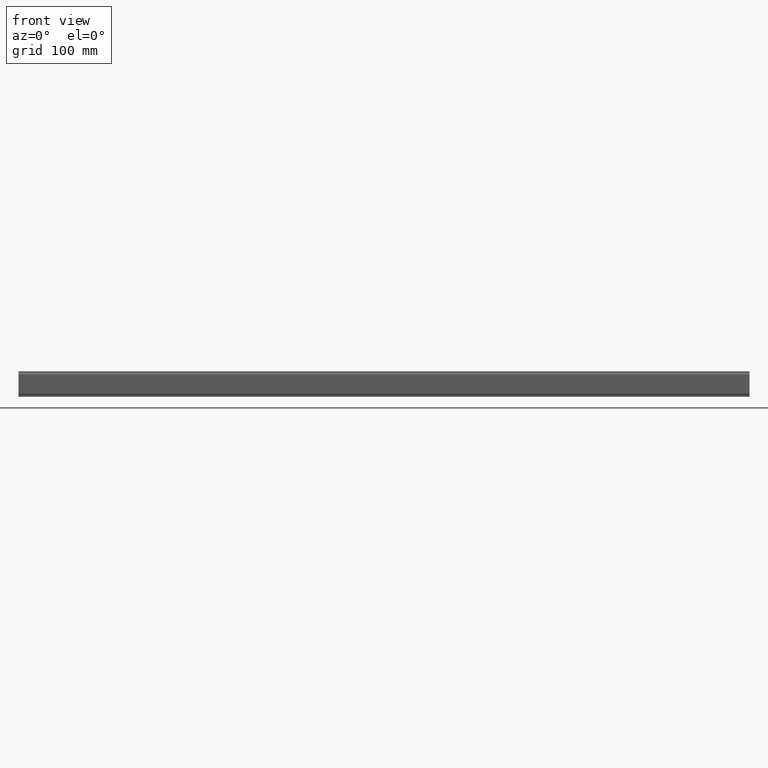
[diagram: clean part render]
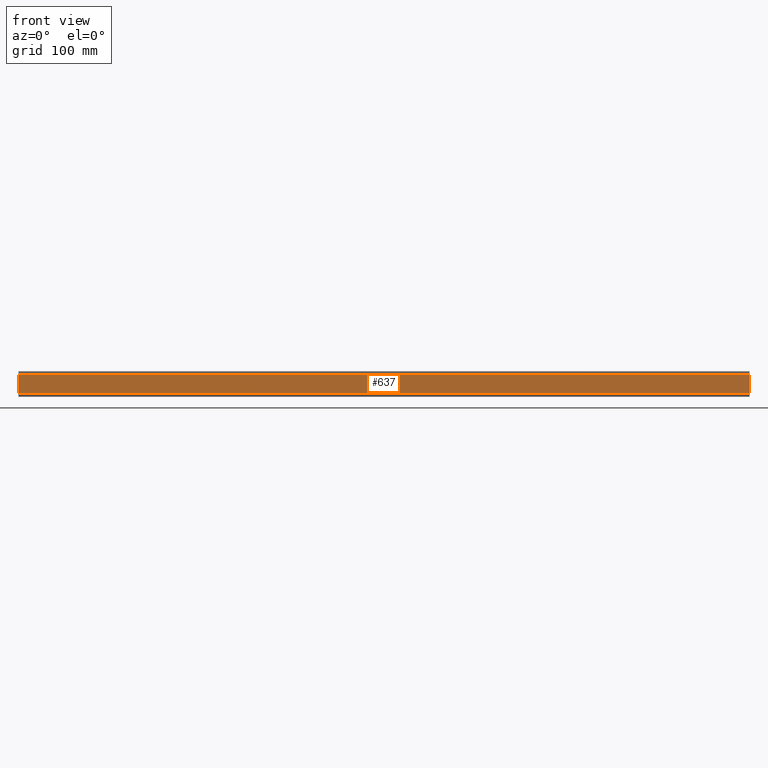
[diagram: same view with one face highlighted and labeled with its STEP entity id]
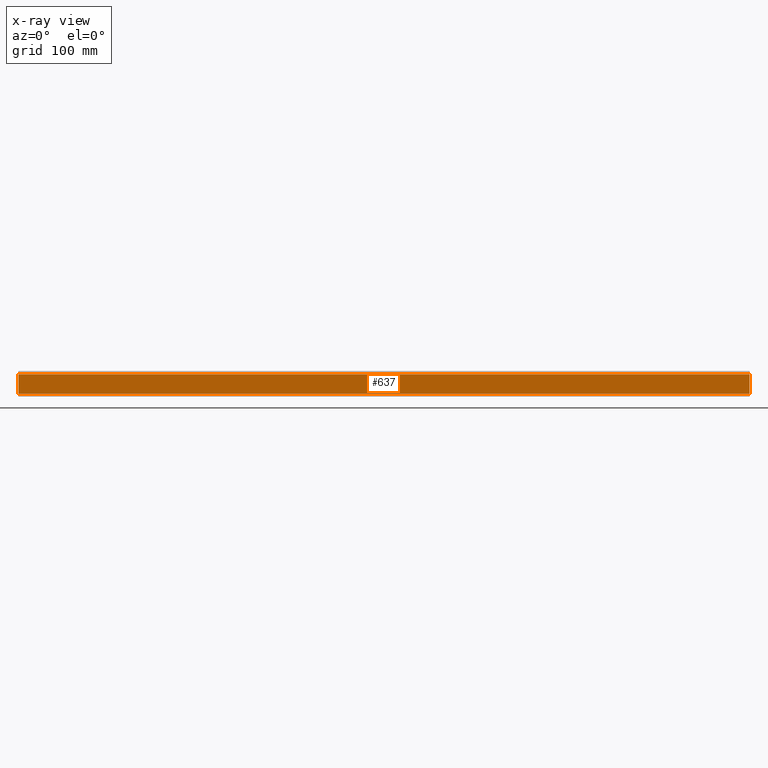
[diagram: x-ray of the same camera — body ghosted, the highlighted face saturated]
A machine part, front view. The second image highlights one B-rep face of the part: STEP entity #637.
The next image is the same camera in x-ray: the body ghosted, the highlighted face saturated — about 0% of this face is hidden behind the body in this view.
In plain terms, the highlighted planar face has unit normal (-0, 1, 0).
Its self-contained STEP definition (entity closure, byte-faithful):
#56 = EDGE_LOOP ( 'NONE', ( #126, #107, #140, #133 ) ) ;
#73 = VERTEX_POINT ( 'NONE', #253 ) ;
#82 = VERTEX_POINT ( 'NONE', #89 ) ;
#89 = CARTESIAN_POINT ( 'NONE',  ( 1000.000000000000000, -1.110223024625156500E-013, 26.29999999999999000 ) ) ;
#99 = VERTEX_POINT ( 'NONE', #244 ) ;
#107 = ORIENTED_EDGE ( 'NONE', *, *, #630, .F. ) ;
#117 = VERTEX_POINT ( 'NONE', #219 ) ;
#126 = ORIENTED_EDGE ( 'NONE', *, *, #584, .T. ) ;
#133 = ORIENTED_EDGE ( 'NONE', *, *, #605, .T. ) ;
#140 = ORIENTED_EDGE ( 'NONE', *, *, #608, .F. ) ;
#219 = CARTESIAN_POINT ( 'NONE',  ( 1000.000000000000000, -5.551115123125782700E-014, 1.836970198720929400E-016 ) ) ;
#244 = CARTESIAN_POINT ( 'NONE',  ( 0.0000000000000000000, -1.110223024625156500E-013, 26.29999999999999000 ) ) ;
#253 = CARTESIAN_POINT ( 'NONE',  ( 0.0000000000000000000, -5.551115123125782700E-014, 1.836970198720929400E-016 ) ) ;
#338 = CARTESIAN_POINT ( 'NONE',  ( 0.0000000000000000000, -1.110223024625156500E-013, 26.29999999999999000 ) ) ;
#350 = DIRECTION ( 'NONE',  ( 0.0000000000000000000, 0.0000000000000000000, -1.000000000000000000 ) ) ;
#362 = LINE ( 'NONE', #338, #695 ) ;
#392 = DIRECTION ( 'NONE',  ( -1.000000000000000000, -0.0000000000000000000, -0.0000000000000000000 ) ) ;
#408 = LINE ( 'NONE', #409, #743 ) ;
#409 = CARTESIAN_POINT ( 'NONE',  ( 1000.000000000000000, -1.110223024625156500E-013, 26.29999999999999000 ) ) ;
#432 = DIRECTION ( 'NONE',  ( 0.0000000000000000000, 0.0000000000000000000, -1.000000000000000000 ) ) ;
#441 = LINE ( 'NONE', #453, #756 ) ;
#453 = CARTESIAN_POINT ( 'NONE',  ( 1000.000000000000000, -1.110223024625156500E-013, 26.29999999999999000 ) ) ;
#472 = DIRECTION ( 'NONE',  ( -0.0000000000000000000, 1.000000000000000000, 0.0000000000000000000 ) ) ;
#475 = CARTESIAN_POINT ( 'NONE',  ( 1000.000000000000000, -1.110223024625156500E-013, 26.29999999999999000 ) ) ;
#478 = PLANE ( 'NONE',  #740 ) ;
#480 = LINE ( 'NONE', #485, #700 ) ;
#485 = CARTESIAN_POINT ( 'NONE',  ( 1000.000000000000000, -5.551115123125782700E-014, 1.836970198720929400E-016 ) ) ;
#486 = DIRECTION ( 'NONE',  ( 0.0000000000000000000, -0.0000000000000000000, 1.000000000000000000 ) ) ;
#502 = DIRECTION ( 'NONE',  ( -1.000000000000000000, -0.0000000000000000000, -0.0000000000000000000 ) ) ;
#505 = FACE_OUTER_BOUND ( 'NONE', #56, .T. ) ;
#584 = EDGE_CURVE ( 'NONE', #99, #73, #362, .T. ) ;
#605 = EDGE_CURVE ( 'NONE', #82, #99, #408, .T. ) ;
#608 = EDGE_CURVE ( 'NONE', #82, #117, #441, .T. ) ;
#630 = EDGE_CURVE ( 'NONE', #117, #73, #480, .T. ) ;
#637 = ADVANCED_FACE ( 'NONE', ( #505 ), #478, .F. ) ;
#695 = VECTOR ( 'NONE', #350, 1000.000000000000000 ) ;
#700 = VECTOR ( 'NONE', #502, 1000.000000000000000 ) ;
#740 = AXIS2_PLACEMENT_3D ( 'NONE', #475, #472, #486 ) ;
#743 = VECTOR ( 'NONE', #392, 1000.000000000000000 ) ;
#756 = VECTOR ( 'NONE', #432, 1000.000000000000000 ) ;